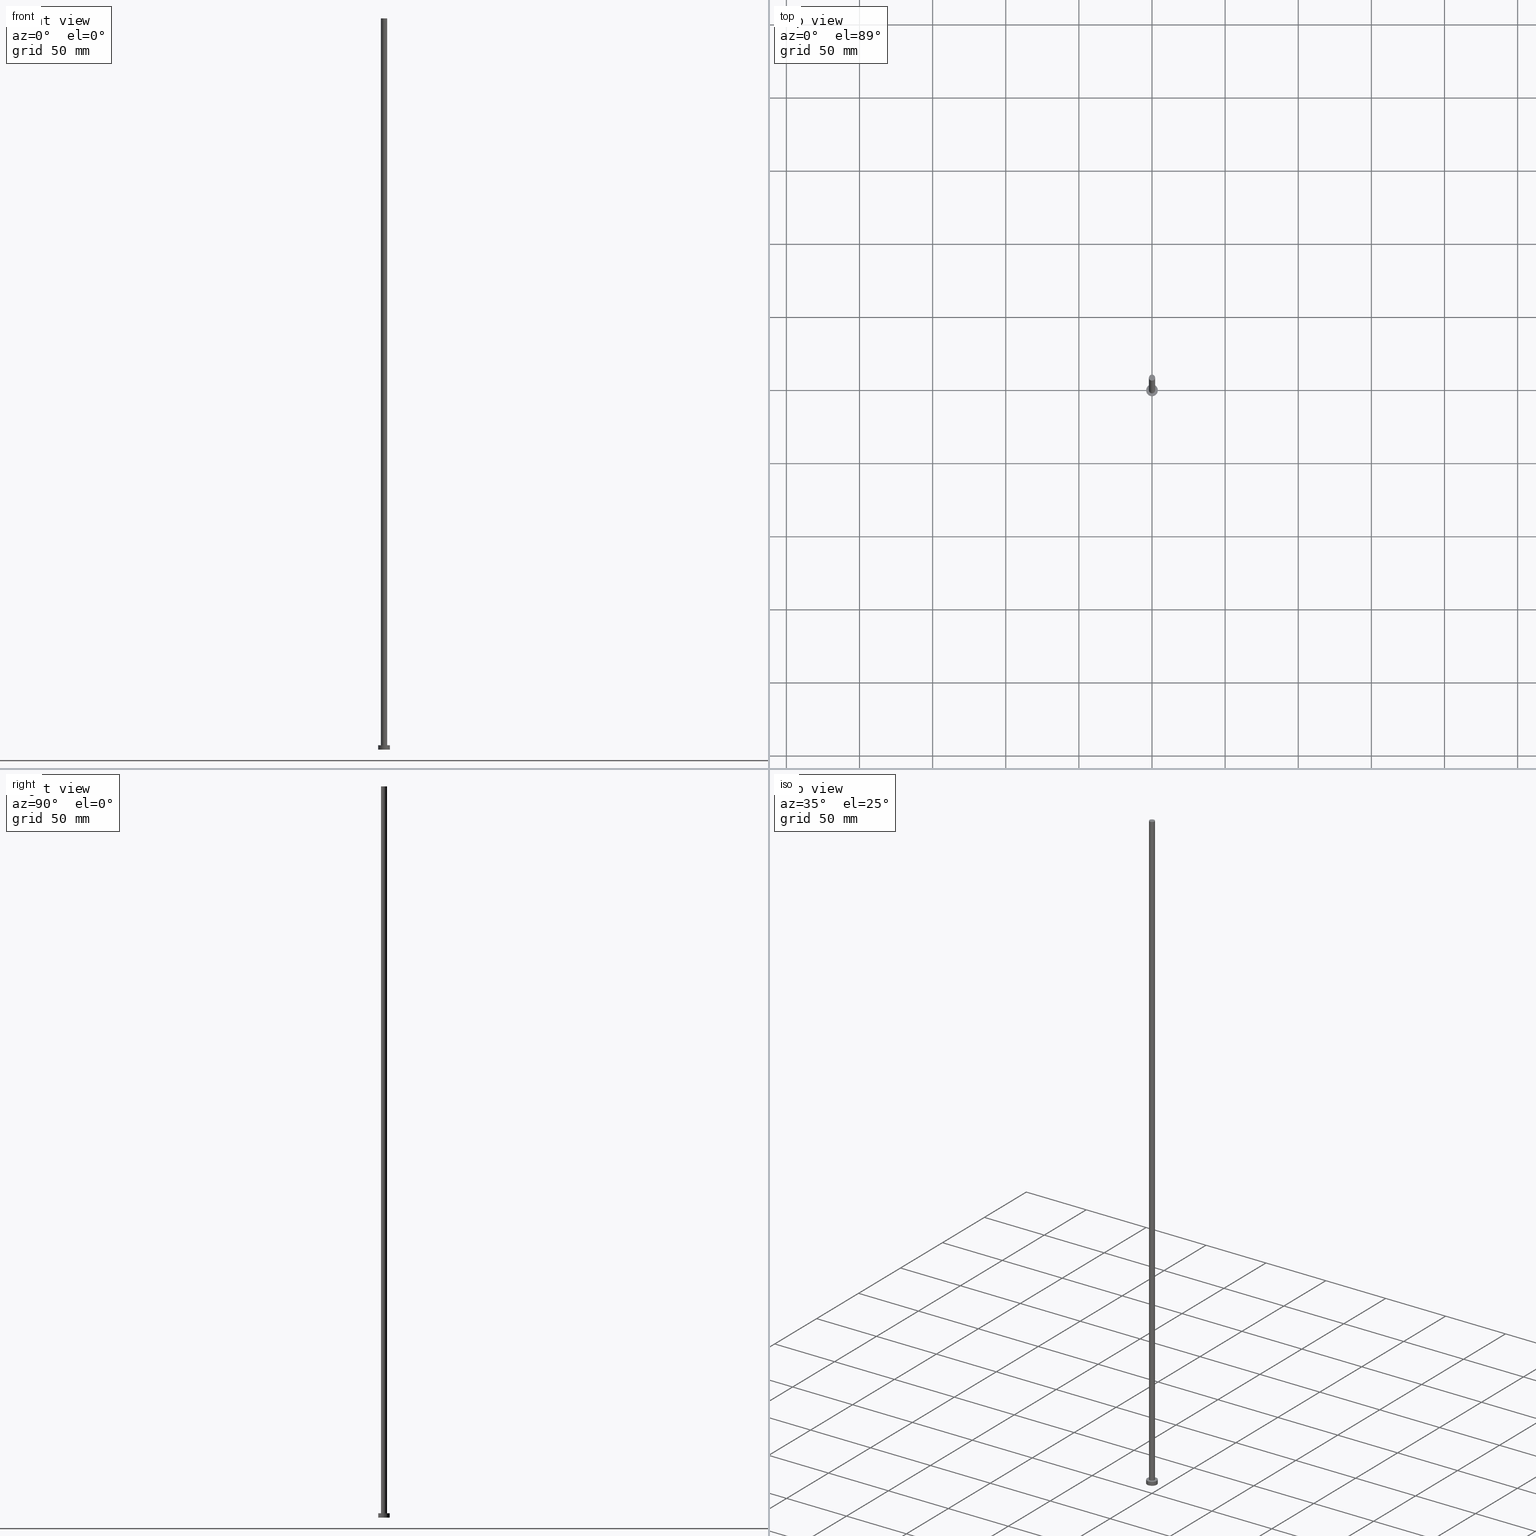
[diagram: canonical four-view strip — front | top / right | iso, engineering-drawing reading convention]
A machine part, canonical four-view strip (front | top / right | iso — engineering-drawing reading convention). The complete STEP part file that produces these views, byte-faithful:
ISO-10303-21;
HEADER;
FILE_DESCRIPTION (( 'STEP AP203' ),
    '1' );
FILE_NAME ('95e3.STEP',
    '2026-02-06T12:41:56',
    ( '' ),
    ( '' ),
    'SwSTEP 2.0',
    'SolidWorks 2019',
    '' );
FILE_SCHEMA (( 'CONFIG_CONTROL_DESIGN' ));
ENDSEC;

DATA;
#1 = DIRECTION ( 'NONE',  ( 1.000000000000000000, 0.000000000000000000, 0.000000000000000000 ) ) ;
#2 = VERTEX_POINT ( 'NONE', #115 ) ;
#3 = DIRECTION ( 'NONE',  ( 1.000000000000000000, 0.000000000000000000, -0.000000000000000000 ) ) ;
#4 = CARTESIAN_POINT ( 'NONE',  ( 0.000000000000000000, 0.000000000000000000, 3.000000000000000000 ) ) ;
#5 = ORIENTED_EDGE ( 'NONE', *, *, #109, .F. ) ;
#6 = PERSON_AND_ORGANIZATION ( #135, #162 ) ;
#7 = DIRECTION ( 'NONE',  ( -0.000000000000000000, -0.000000000000000000, -1.000000000000000000 ) ) ;
#8 = DIRECTION ( 'NONE',  ( 1.000000000000000000, 0.000000000000000000, 0.000000000000000000 ) ) ;
#9 = APPROVAL_ROLE ( '' ) ;
#10 = COORDINATED_UNIVERSAL_TIME_OFFSET ( 1, 0, .AHEAD. ) ;
#11 = DIRECTION ( 'NONE',  ( -1.000000000000000000, 0.000000000000000000, 0.000000000000000000 ) ) ;
#12 = CARTESIAN_POINT ( 'NONE',  ( 0.000000000000000000, 0.000000000000000000, 3.000000000000000000 ) ) ;
#13 = AXIS2_PLACEMENT_3D ( 'NONE', #194, #95, #11 ) ;
#14 = PRODUCT_DEFINITION_FORMATION_WITH_SPECIFIED_SOURCE ( 'LIBOVOLN�', '', #71, .NOT_KNOWN. ) ;
#15 = APPROVAL ( #63, 'NEUR�EN�' ) ;
#16 = DATE_AND_TIME ( #45, #44 ) ;
#17 = VERTEX_POINT ( 'NONE', #226 ) ;
#18 = PLANE ( 'NONE',  #238 ) ;
#19 = ORIENTED_EDGE ( 'NONE', *, *, #78, .F. ) ;
#20 = CC_DESIGN_APPROVAL ( #15, ( #251 ) ) ;
#21 = ADVANCED_FACE ( 'NONE', ( #31 ), #195, .T. ) ;
#22 = PERSON_AND_ORGANIZATION_ROLE ( 'creator' ) ;
#23 = DIRECTION ( 'NONE',  ( -1.000000000000000000, 0.000000000000000000, 0.000000000000000000 ) ) ;
#24 = DATE_AND_TIME ( #47, #117 ) ;
#25 = FACE_BOUND ( 'NONE', #172, .T. ) ;
#26 = DIRECTION ( 'NONE',  ( 0.000000000000000000, 0.000000000000000000, 1.000000000000000000 ) ) ;
#27 = VERTEX_POINT ( 'NONE', #167 ) ;
#28 = DIRECTION ( 'NONE',  ( 1.000000000000000000, 0.000000000000000000, 0.000000000000000000 ) ) ;
#29 = CALENDAR_DATE ( 2026, 6, 2 ) ;
#30 = PERSON_AND_ORGANIZATION_ROLE ( 'creator' ) ;
#31 = FACE_OUTER_BOUND ( 'NONE', #227, .T. ) ;
#32 = FACE_OUTER_BOUND ( 'NONE', #106, .T. ) ;
#33 = CARTESIAN_POINT ( 'NONE',  ( -4.000000000000000000, 0.000000000000000000, 3.000000000000000000 ) ) ;
#34 = DIRECTION ( 'NONE',  ( 1.000000000000000000, 0.000000000000000000, -0.000000000000000000 ) ) ;
#35 = EDGE_CURVE ( 'NONE', #77, #222, #143, .T. ) ;
#36 = ORIENTED_EDGE ( 'NONE', *, *, #42, .T. ) ;
#37 = EDGE_CURVE ( 'NONE', #232, #17, #244, .T. ) ;
#38 = VECTOR ( 'NONE', #255, 1000.000000000000000 ) ;
#39 = EDGE_LOOP ( 'NONE', ( #201, #91 ) ) ;
#40 =( NAMED_UNIT ( * ) PLANE_ANGLE_UNIT ( ) SI_UNIT ( $, .RADIAN. ) );
#41 = LINE ( 'NONE', #218, #97 ) ;
#42 = EDGE_CURVE ( 'NONE', #2, #77, #120, .T. ) ;
#43 = UNCERTAINTY_MEASURE_WITH_UNIT (LENGTH_MEASURE( 1.000000000000000082E-05 ), #254, 'distance_accuracy_value', 'NONE');
#44 = LOCAL_TIME ( 13, 41, 56.00000000000000000, #234 ) ;
#45 = CALENDAR_DATE ( 2026, 6, 2 ) ;
#46 =( NAMED_UNIT ( * ) SI_UNIT ( $, .STERADIAN. ) SOLID_ANGLE_UNIT ( ) );
#47 = CALENDAR_DATE ( 2026, 6, 2 ) ;
#48 = CYLINDRICAL_SURFACE ( 'NONE', #165, 2.100000000000000089 ) ;
#49 = ADVANCED_FACE ( 'NONE', ( #132 ), #212, .T. ) ;
#50 = MECHANICAL_CONTEXT ( 'NONE', #118, 'mechanical' ) ;
#51 = CC_DESIGN_APPROVAL ( #137, ( #14 ) ) ;
#52 = CC_DESIGN_PERSON_AND_ORGANIZATION_ASSIGNMENT ( #225, #53, ( #14 ) ) ;
#53 = PERSON_AND_ORGANIZATION_ROLE ( 'design_supplier' ) ;
#54 = PERSON_AND_ORGANIZATION_ROLE ( 'classification_officer' ) ;
#55 = LOCAL_TIME ( 13, 41, 56.00000000000000000, #122 ) ;
#56 = AXIS2_PLACEMENT_3D ( 'NONE', #231, #155, #8 ) ;
#57 = DIRECTION ( 'NONE',  ( -0.000000000000000000, -0.000000000000000000, -1.000000000000000000 ) ) ;
#58 = ADVANCED_BREP_SHAPE_REPRESENTATION ( '95e3', ( #80, #59 ), #197 ) ;
#59 = AXIS2_PLACEMENT_3D ( 'NONE', #205, #246, #146 ) ;
#60 = APPROVAL_PERSON_ORGANIZATION ( #168, #137, #86 ) ;
#61 = AXIS2_PLACEMENT_3D ( 'NONE', #72, #26, #104 ) ;
#62 = AXIS2_PLACEMENT_3D ( 'NONE', #4, #111, #247 ) ;
#63 = APPROVAL_STATUS ( 'not_yet_approved' ) ;
#64 = LINE ( 'NONE', #125, #38 ) ;
#65 = CC_DESIGN_PERSON_AND_ORGANIZATION_ASSIGNMENT ( #105, #182, ( #71 ) ) ;
#66 = PERSON_AND_ORGANIZATION ( #135, #162 ) ;
#67 = AXIS2_PLACEMENT_3D ( 'NONE', #166, #127, #28 ) ;
#68 = DATE_AND_TIME ( #245, #189 ) ;
#69 = ADVANCED_FACE ( 'NONE', ( #93 ), #70, .T. ) ;
#70 = PLANE ( 'NONE',  #145 ) ;
#71 = PRODUCT ( '95e3', '95e3', '', ( #50 ) ) ;
#72 = CARTESIAN_POINT ( 'NONE',  ( 0.000000000000000000, 0.000000000000000000, 3.000000000000000000 ) ) ;
#73 = ORIENTED_EDGE ( 'NONE', *, *, #116, .F. ) ;
#74 = CIRCLE ( 'NONE', #61, 4.000000000000000000 ) ;
#75 = DIRECTION ( 'NONE',  ( 0.000000000000000000, 0.000000000000000000, 1.000000000000000000 ) ) ;
#76 = DATE_AND_TIME ( #81, #55 ) ;
#77 = VERTEX_POINT ( 'NONE', #152 ) ;
#78 = EDGE_CURVE ( 'NONE', #174, #232, #248, .T. ) ;
#79 = ORIENTED_EDGE ( 'NONE', *, *, #173, .F. ) ;
#80 = MANIFOLD_SOLID_BREP ( 'P�idat vysunut�m3', #140 ) ;
#81 = CALENDAR_DATE ( 2026, 6, 2 ) ;
#82 = DIRECTION ( 'NONE',  ( 1.000000000000000000, 0.000000000000000000, -0.000000000000000000 ) ) ;
#83 = ORIENTED_EDGE ( 'NONE', *, *, #236, .F. ) ;
#84 = DIRECTION ( 'NONE',  ( 0.000000000000000000, 0.000000000000000000, 1.000000000000000000 ) ) ;
#85 = DIRECTION ( 'NONE',  ( 0.000000000000000000, 0.000000000000000000, 1.000000000000000000 ) ) ;
#86 = APPROVAL_ROLE ( '' ) ;
#87 = DIRECTION ( 'NONE',  ( 0.000000000000000000, 0.000000000000000000, 1.000000000000000000 ) ) ;
#88 = ADVANCED_FACE ( 'NONE', ( #32 ), #190, .T. ) ;
#89 = AXIS2_PLACEMENT_3D ( 'NONE', #191, #130, #147 ) ;
#90 = DIRECTION ( 'NONE',  ( 0.000000000000000000, 0.000000000000000000, 1.000000000000000000 ) ) ;
#91 = ORIENTED_EDGE ( 'NONE', *, *, #161, .T. ) ;
#92 = DIRECTION ( 'NONE',  ( 0.000000000000000000, 0.000000000000000000, 1.000000000000000000 ) ) ;
#93 = FACE_OUTER_BOUND ( 'NONE', #39, .T. ) ;
#94 = ADVANCED_FACE ( 'NONE', ( #103 ), #48, .T. ) ;
#95 = DIRECTION ( 'NONE',  ( -0.000000000000000000, -0.000000000000000000, -1.000000000000000000 ) ) ;
#96 = CC_DESIGN_PERSON_AND_ORGANIZATION_ASSIGNMENT ( #206, #30, ( #14 ) ) ;
#97 = VECTOR ( 'NONE', #200, 1000.000000000000000 ) ;
#98 = ORIENTED_EDGE ( 'NONE', *, *, #199, .T. ) ;
#99 = DIRECTION ( 'NONE',  ( 0.000000000000000000, 0.000000000000000000, 1.000000000000000000 ) ) ;
#100 = EDGE_LOOP ( 'NONE', ( #73, #5, #237, #119 ) ) ;
#101 = DIRECTION ( 'NONE',  ( -0.000000000000000000, -0.000000000000000000, -1.000000000000000000 ) ) ;
#102 = APPROVAL_ROLE ( '' ) ;
#103 = FACE_OUTER_BOUND ( 'NONE', #100, .T. ) ;
#104 = DIRECTION ( 'NONE',  ( 1.000000000000000000, 0.000000000000000000, 0.000000000000000000 ) ) ;
#105 = PERSON_AND_ORGANIZATION ( #135, #162 ) ;
#106 = EDGE_LOOP ( 'NONE', ( #83, #163, #150, #164 ) ) ;
#107 = PRODUCT_DEFINITION_SHAPE ( 'NONE', 'NONE',  #251 ) ;
#108 = PLANE ( 'NONE',  #188 ) ;
#109 = EDGE_CURVE ( 'NONE', #174, #27, #176, .T. ) ;
#110 = PERSON_AND_ORGANIZATION ( #135, #162 ) ;
#111 = DIRECTION ( 'NONE',  ( 0.000000000000000000, 0.000000000000000000, 1.000000000000000000 ) ) ;
#112 = DATE_AND_TIME ( #29, #178 ) ;
#113 = DIRECTION ( 'NONE',  ( -0.000000000000000000, -0.000000000000000000, -1.000000000000000000 ) ) ;
#114 = CC_DESIGN_SECURITY_CLASSIFICATION ( #192, ( #14 ) ) ;
#115 = CARTESIAN_POINT ( 'NONE',  ( 4.000000000000000000, 4.898587196589412829E-16, 3.000000000000000000 ) ) ;
#116 = EDGE_CURVE ( 'NONE', #27, #17, #64, .T. ) ;
#117 = LOCAL_TIME ( 13, 41, 56.00000000000000000, #151 ) ;
#118 = APPLICATION_CONTEXT ( 'configuration controlled 3d designs of mechanical parts and assemblies' ) ;
#119 = ORIENTED_EDGE ( 'NONE', *, *, #37, .T. ) ;
#120 = CIRCLE ( 'NONE', #249, 4.000000000000000000 ) ;
#121 = APPROVAL_DATE_TIME ( #16, #15 ) ;
#122 = COORDINATED_UNIVERSAL_TIME_OFFSET ( 1, 0, .AHEAD. ) ;
#123 = DIRECTION ( 'NONE',  ( 1.000000000000000000, 0.000000000000000000, 0.000000000000000000 ) ) ;
#124 = FACE_OUTER_BOUND ( 'NONE', #180, .T. ) ;
#125 = CARTESIAN_POINT ( 'NONE',  ( 2.100000000000000089, 2.571758278209441464E-16, 500.0000000000000000 ) ) ;
#126 = CARTESIAN_POINT ( 'NONE',  ( -2.100000000000000089, 0.000000000000000000, 500.0000000000000000 ) ) ;
#127 = DIRECTION ( 'NONE',  ( 0.000000000000000000, 0.000000000000000000, 1.000000000000000000 ) ) ;
#128 = SECURITY_CLASSIFICATION_LEVEL ( 'unclassified' ) ;
#129 = ORIENTED_EDGE ( 'NONE', *, *, #193, .T. ) ;
#130 = DIRECTION ( 'NONE',  ( -0.000000000000000000, -0.000000000000000000, -1.000000000000000000 ) ) ;
#131 = DATE_TIME_ROLE ( 'classification_date' ) ;
#132 = FACE_OUTER_BOUND ( 'NONE', #171, .T. ) ;
#133 = VECTOR ( 'NONE', #7, 1000.000000000000000 ) ;
#134 = ORIENTED_EDGE ( 'NONE', *, *, #161, .F. ) ;
#135 = PERSON ( 'NEUR�EN�', 'NEUR�EN�', 'NEUR�EN�', ('NEUR�EN�'), ('NEUR�EN�'), ('NEUR�EN�') ) ;
#136 = AXIS2_PLACEMENT_3D ( 'NONE', #185, #87, #123 ) ;
#137 = APPROVAL ( #187, 'NEUR�EN�' ) ;
#138 = APPROVAL ( #153, 'NEUR�EN�' ) ;
#139 = CC_DESIGN_DATE_AND_TIME_ASSIGNMENT ( #112, #131, ( #192 ) ) ;
#140 = CLOSED_SHELL ( 'NONE', ( #49, #21, #88, #158, #242, #94, #69 ) ) ;
#141 = APPROVAL_PERSON_ORGANIZATION ( #6, #138, #9 ) ;
#142 = FACE_OUTER_BOUND ( 'NONE', #154, .T. ) ;
#143 = LINE ( 'NONE', #33, #133 ) ;
#144 = CARTESIAN_POINT ( 'NONE',  ( 0.000000000000000000, 0.000000000000000000, 500.0000000000000000 ) ) ;
#145 = AXIS2_PLACEMENT_3D ( 'NONE', #207, #92, #34 ) ;
#146 = DIRECTION ( 'NONE',  ( 1.000000000000000000, 0.000000000000000000, 0.000000000000000000 ) ) ;
#147 = DIRECTION ( 'NONE',  ( -1.000000000000000000, 0.000000000000000000, 0.000000000000000000 ) ) ;
#148 = APPROVAL_DATE_TIME ( #68, #137 ) ;
#149 = CARTESIAN_POINT ( 'NONE',  ( -4.000000000000000000, 0.000000000000000000, 0.000000000000000000 ) ) ;
#150 = ORIENTED_EDGE ( 'NONE', *, *, #35, .T. ) ;
#151 = COORDINATED_UNIVERSAL_TIME_OFFSET ( 1, 0, .AHEAD. ) ;
#152 = CARTESIAN_POINT ( 'NONE',  ( -4.000000000000000000, 0.000000000000000000, 3.000000000000000000 ) ) ;
#153 = APPROVAL_STATUS ( 'not_yet_approved' ) ;
#154 = EDGE_LOOP ( 'NONE', ( #219, #250 ) ) ;
#155 = DIRECTION ( 'NONE',  ( 0.000000000000000000, 0.000000000000000000, 1.000000000000000000 ) ) ;
#156 = DESIGN_CONTEXT ( 'detailed design', #240, 'design' ) ;
#157 = DIRECTION ( 'NONE',  ( 1.000000000000000000, 0.000000000000000000, 0.000000000000000000 ) ) ;
#158 = ADVANCED_FACE ( 'NONE', ( #25, #124 ), #108, .T. ) ;
#159 = VECTOR ( 'NONE', #113, 1000.000000000000000 ) ;
#160 = APPROVAL_DATE_TIME ( #76, #138 ) ;
#161 = EDGE_CURVE ( 'NONE', #27, #174, #233, .T. ) ;
#162 = ORGANIZATION ( 'NEUR�EN�', 'NEUR�EN�', '' ) ;
#163 = ORIENTED_EDGE ( 'NONE', *, *, #193, .F. ) ;
#164 = ORIENTED_EDGE ( 'NONE', *, *, #223, .T. ) ;
#165 = AXIS2_PLACEMENT_3D ( 'NONE', #144, #101, #224 ) ;
#166 = CARTESIAN_POINT ( 'NONE',  ( 0.000000000000000000, 0.000000000000000000, 500.0000000000000000 ) ) ;
#167 = CARTESIAN_POINT ( 'NONE',  ( 2.100000000000000089, 2.571758278209441464E-16, 500.0000000000000000 ) ) ;
#168 = PERSON_AND_ORGANIZATION ( #135, #162 ) ;
#169 = APPLICATION_PROTOCOL_DEFINITION ( 'international standard', 'config_control_design', 1994, #240 ) ;
#170 = COORDINATED_UNIVERSAL_TIME_OFFSET ( 1, 0, .AHEAD. ) ;
#171 = EDGE_LOOP ( 'NONE', ( #134, #243, #183, #19 ) ) ;
#172 = EDGE_LOOP ( 'NONE', ( #215, #79 ) ) ;
#173 = EDGE_CURVE ( 'NONE', #17, #232, #213, .T. ) ;
#174 = VERTEX_POINT ( 'NONE', #126 ) ;
#175 = ORIENTED_EDGE ( 'NONE', *, *, #236, .T. ) ;
#176 = CIRCLE ( 'NONE', #67, 2.100000000000000089 ) ;
#177 = ORIENTED_EDGE ( 'NONE', *, *, #35, .F. ) ;
#178 = LOCAL_TIME ( 13, 41, 56.00000000000000000, #10 ) ;
#179 = CARTESIAN_POINT ( 'NONE',  ( 0.000000000000000000, 0.000000000000000000, 0.000000000000000000 ) ) ;
#180 = EDGE_LOOP ( 'NONE', ( #129, #36 ) ) ;
#181 = DATE_TIME_ROLE ( 'creation_date' ) ;
#182 = PERSON_AND_ORGANIZATION_ROLE ( 'design_owner' ) ;
#183 = ORIENTED_EDGE ( 'NONE', *, *, #173, .T. ) ;
#184 = CARTESIAN_POINT ( 'NONE',  ( 0.000000000000000000, 0.000000000000000000, 3.000000000000000000 ) ) ;
#185 = CARTESIAN_POINT ( 'NONE',  ( 0.000000000000000000, 0.000000000000000000, 0.000000000000000000 ) ) ;
#186 = CARTESIAN_POINT ( 'NONE',  ( 0.000000000000000000, 0.000000000000000000, 500.0000000000000000 ) ) ;
#187 = APPROVAL_STATUS ( 'not_yet_approved' ) ;
#188 = AXIS2_PLACEMENT_3D ( 'NONE', #184, #85, #3 ) ;
#189 = LOCAL_TIME ( 13, 41, 56.00000000000000000, #170 ) ;
#190 = CYLINDRICAL_SURFACE ( 'NONE', #89, 4.000000000000000000 ) ;
#191 = CARTESIAN_POINT ( 'NONE',  ( 0.000000000000000000, 0.000000000000000000, 3.000000000000000000 ) ) ;
#192 = SECURITY_CLASSIFICATION ( '', '', #128 ) ;
#193 = EDGE_CURVE ( 'NONE', #77, #2, #74, .T. ) ;
#194 = CARTESIAN_POINT ( 'NONE',  ( 0.000000000000000000, 0.000000000000000000, 500.0000000000000000 ) ) ;
#195 = CYLINDRICAL_SURFACE ( 'NONE', #252, 4.000000000000000000 ) ;
#196 = PRODUCT_RELATED_PRODUCT_CATEGORY ( 'detail', '', ( #71 ) ) ;
#197 =( GEOMETRIC_REPRESENTATION_CONTEXT ( 3 ) GLOBAL_UNCERTAINTY_ASSIGNED_CONTEXT ( ( #43 ) ) GLOBAL_UNIT_ASSIGNED_CONTEXT ( ( #254, #40, #46 ) ) REPRESENTATION_CONTEXT ( 'NONE', 'WORKASPACE' ) );
#198 = CC_DESIGN_PERSON_AND_ORGANIZATION_ASSIGNMENT ( #110, #54, ( #192 ) ) ;
#199 = EDGE_CURVE ( 'NONE', #217, #222, #214, .T. ) ;
#200 = DIRECTION ( 'NONE',  ( -0.000000000000000000, -0.000000000000000000, -1.000000000000000000 ) ) ;
#201 = ORIENTED_EDGE ( 'NONE', *, *, #109, .T. ) ;
#202 = PERSON_AND_ORGANIZATION ( #135, #162 ) ;
#203 = CARTESIAN_POINT ( 'NONE',  ( 0.000000000000000000, 0.000000000000000000, 0.000000000000000000 ) ) ;
#204 = CARTESIAN_POINT ( 'NONE',  ( 4.000000000000000000, 4.898587196589412829E-16, 0.000000000000000000 ) ) ;
#205 = CARTESIAN_POINT ( 'NONE',  ( 0.000000000000000000, 0.000000000000000000, 0.000000000000000000 ) ) ;
#206 = PERSON_AND_ORGANIZATION ( #135, #162 ) ;
#207 = CARTESIAN_POINT ( 'NONE',  ( 0.000000000000000000, 0.000000000000000000, 500.0000000000000000 ) ) ;
#208 = AXIS2_PLACEMENT_3D ( 'NONE', #179, #84, #241 ) ;
#209 = CIRCLE ( 'NONE', #208, 4.000000000000000000 ) ;
#210 = CARTESIAN_POINT ( 'NONE',  ( 0.000000000000000000, 0.000000000000000000, 3.000000000000000000 ) ) ;
#211 = CC_DESIGN_PERSON_AND_ORGANIZATION_ASSIGNMENT ( #202, #22, ( #251 ) ) ;
#212 = CYLINDRICAL_SURFACE ( 'NONE', #13, 2.100000000000000089 ) ;
#213 = CIRCLE ( 'NONE', #62, 2.100000000000000089 ) ;
#214 = CIRCLE ( 'NONE', #136, 4.000000000000000000 ) ;
#215 = ORIENTED_EDGE ( 'NONE', *, *, #37, .F. ) ;
#216 = CARTESIAN_POINT ( 'NONE',  ( -2.100000000000000089, 0.000000000000000000, 3.000000000000000000 ) ) ;
#217 = VERTEX_POINT ( 'NONE', #204 ) ;
#218 = CARTESIAN_POINT ( 'NONE',  ( 4.000000000000000000, 4.898587196589412829E-16, 3.000000000000000000 ) ) ;
#219 = ORIENTED_EDGE ( 'NONE', *, *, #223, .F. ) ;
#220 = APPLICATION_PROTOCOL_DEFINITION ( 'international standard', 'config_control_design', 1994, #118 ) ;
#221 = CC_DESIGN_APPROVAL ( #138, ( #192 ) ) ;
#222 = VERTEX_POINT ( 'NONE', #149 ) ;
#223 = EDGE_CURVE ( 'NONE', #222, #217, #209, .T. ) ;
#224 = DIRECTION ( 'NONE',  ( -1.000000000000000000, 0.000000000000000000, 0.000000000000000000 ) ) ;
#225 = PERSON_AND_ORGANIZATION ( #135, #162 ) ;
#226 = CARTESIAN_POINT ( 'NONE',  ( 2.100000000000000089, 2.571758278209441464E-16, 3.000000000000000000 ) ) ;
#227 = EDGE_LOOP ( 'NONE', ( #253, #175, #98, #177 ) ) ;
#228 = CARTESIAN_POINT ( 'NONE',  ( -2.100000000000000089, 0.000000000000000000, 500.0000000000000000 ) ) ;
#229 = AXIS2_PLACEMENT_3D ( 'NONE', #186, #90, #1 ) ;
#230 = CC_DESIGN_DATE_AND_TIME_ASSIGNMENT ( #24, #181, ( #251 ) ) ;
#231 = CARTESIAN_POINT ( 'NONE',  ( 0.000000000000000000, 0.000000000000000000, 3.000000000000000000 ) ) ;
#232 = VERTEX_POINT ( 'NONE', #216 ) ;
#233 = CIRCLE ( 'NONE', #229, 2.100000000000000089 ) ;
#234 = COORDINATED_UNIVERSAL_TIME_OFFSET ( 1, 0, .AHEAD. ) ;
#235 = SHAPE_DEFINITION_REPRESENTATION ( #107, #58 ) ;
#236 = EDGE_CURVE ( 'NONE', #2, #217, #41, .T. ) ;
#237 = ORIENTED_EDGE ( 'NONE', *, *, #78, .T. ) ;
#238 = AXIS2_PLACEMENT_3D ( 'NONE', #203, #99, #82 ) ;
#239 = APPROVAL_PERSON_ORGANIZATION ( #66, #15, #102 ) ;
#240 = APPLICATION_CONTEXT ( 'configuration controlled 3d designs of mechanical parts and assemblies' ) ;
#241 = DIRECTION ( 'NONE',  ( 1.000000000000000000, 0.000000000000000000, 0.000000000000000000 ) ) ;
#242 = ADVANCED_FACE ( 'NONE', ( #142 ), #18, .F. ) ;
#243 = ORIENTED_EDGE ( 'NONE', *, *, #116, .T. ) ;
#244 = CIRCLE ( 'NONE', #56, 2.100000000000000089 ) ;
#245 = CALENDAR_DATE ( 2026, 6, 2 ) ;
#246 = DIRECTION ( 'NONE',  ( 0.000000000000000000, 0.000000000000000000, 1.000000000000000000 ) ) ;
#247 = DIRECTION ( 'NONE',  ( 1.000000000000000000, 0.000000000000000000, 0.000000000000000000 ) ) ;
#248 = LINE ( 'NONE', #228, #159 ) ;
#249 = AXIS2_PLACEMENT_3D ( 'NONE', #210, #75, #157 ) ;
#250 = ORIENTED_EDGE ( 'NONE', *, *, #199, .F. ) ;
#251 = PRODUCT_DEFINITION ( 'NEZN�M�', '', #14, #156 ) ;
#252 = AXIS2_PLACEMENT_3D ( 'NONE', #12, #57, #23 ) ;
#253 = ORIENTED_EDGE ( 'NONE', *, *, #42, .F. ) ;
#254 =( LENGTH_UNIT ( ) NAMED_UNIT ( * ) SI_UNIT ( .MILLI., .METRE. ) );
#255 = DIRECTION ( 'NONE',  ( -0.000000000000000000, -0.000000000000000000, -1.000000000000000000 ) ) ;
ENDSEC;
END-ISO-10303-21;
